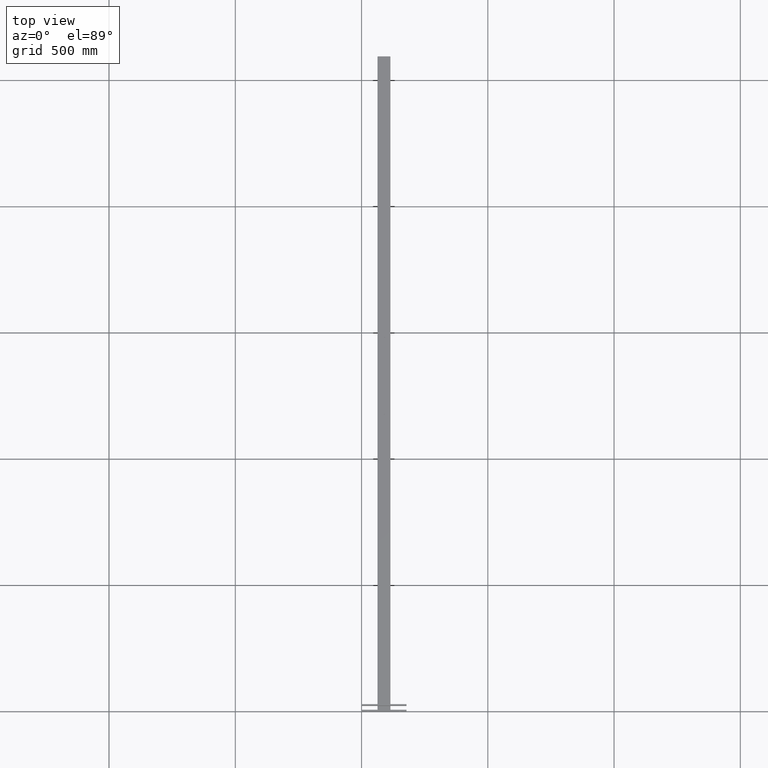
[diagram: clean part render]
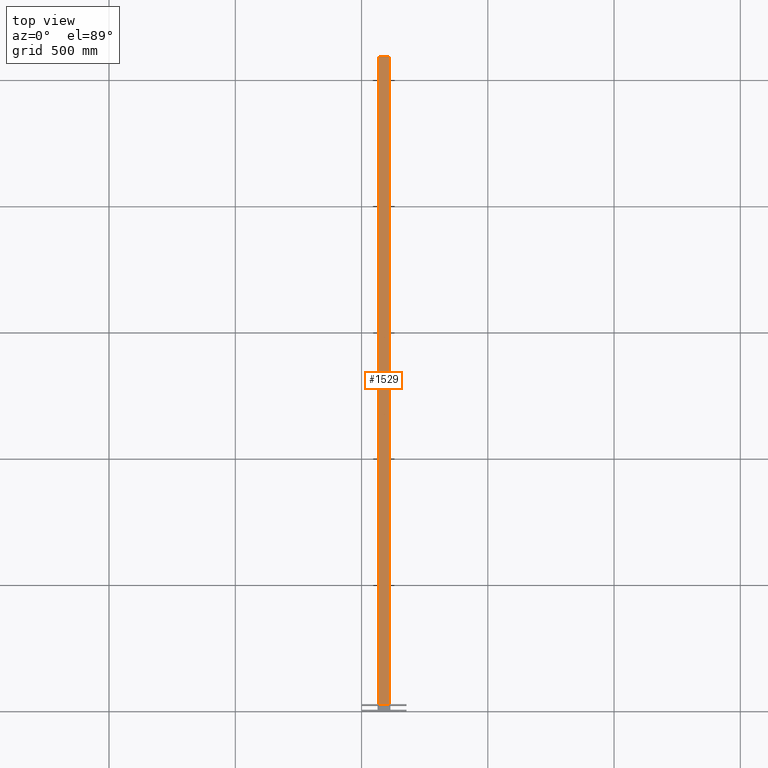
[diagram: same view with one face highlighted and labeled with its STEP entity id]
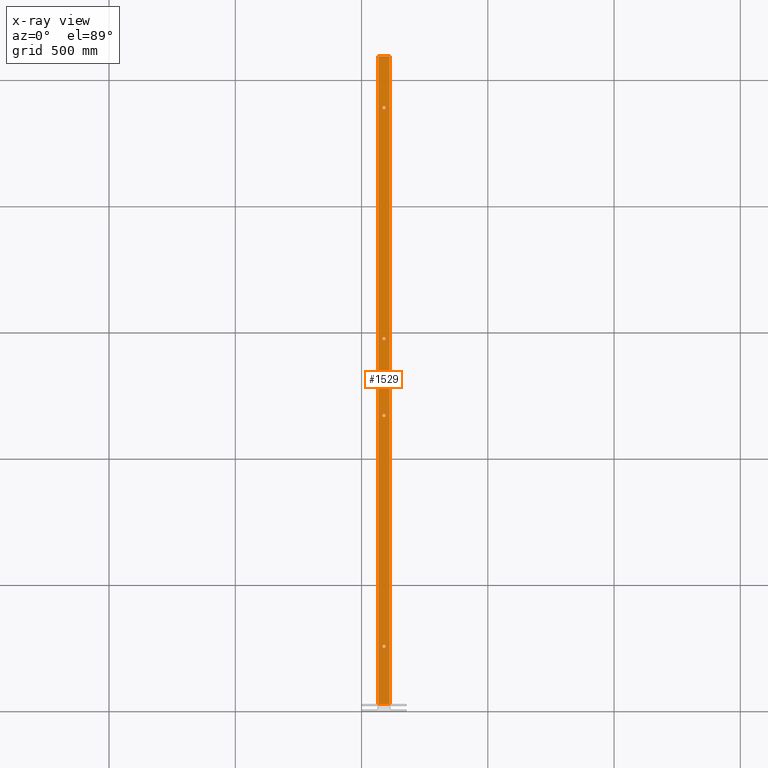
[diagram: x-ray of the same camera — body ghosted, the highlighted face saturated]
A machine part, top view. The second image highlights one B-rep face of the part: STEP entity #1529.
The next image is the same camera in x-ray: the body ghosted, the highlighted face saturated — about 0% of this face is hidden behind the body in this view.
In plain terms, the highlighted planar face has unit normal (0, 0, 1).
Its self-contained STEP definition (entity closure, byte-faithful):
#479=CARTESIAN_POINT('',(0.250000000000004,-0.999999999999972,93.0));
#480=VERTEX_POINT('',#479);
#481=CARTESIAN_POINT('',(0.0,-0.999999999999972,93.0));
#482=DIRECTION('',(0.0,1.0,0.0));
#483=DIRECTION('',(-1.0,0.0,0.0));
#484=AXIS2_PLACEMENT_3D('',#481,#482,#483);
#485=CIRCLE('',#484,0.250000000000004);
#486=EDGE_CURVE('',#480,#480,#485,.T.);
#535=CARTESIAN_POINT('',(0.250000000000002,-0.999999999999972,57.000000000000007));
#536=VERTEX_POINT('',#535);
#537=CARTESIAN_POINT('',(0.0,-0.999999999999972,57.000000000000007));
#538=DIRECTION('',(0.0,1.0,0.0));
#539=DIRECTION('',(-1.0,0.0,0.0));
#540=AXIS2_PLACEMENT_3D('',#537,#538,#539);
#541=CIRCLE('',#540,0.250000000000002);
#542=EDGE_CURVE('',#536,#536,#541,.T.);
#591=CARTESIAN_POINT('',(0.250000000000001,-0.999999999999972,45.000000000000007));
#592=VERTEX_POINT('',#591);
#593=CARTESIAN_POINT('',(0.0,-0.999999999999972,45.000000000000007));
#594=DIRECTION('',(0.0,1.0,0.0));
#595=DIRECTION('',(-1.0,0.0,0.0));
#596=AXIS2_PLACEMENT_3D('',#593,#594,#595);
#597=CIRCLE('',#596,0.250000000000001);
#598=EDGE_CURVE('',#592,#592,#597,.T.);
#647=CARTESIAN_POINT('',(0.250000000000000,-0.999999999999972,9.000000000000005));
#648=VERTEX_POINT('',#647);
#649=CARTESIAN_POINT('',(0.0,-0.999999999999972,9.000000000000005));
#650=DIRECTION('',(0.0,1.0,0.0));
#651=DIRECTION('',(-1.0,0.0,0.0));
#652=AXIS2_PLACEMENT_3D('',#649,#650,#651);
#653=CIRCLE('',#652,0.250000000000000);
#654=EDGE_CURVE('',#648,#648,#653,.T.);
#1231=CARTESIAN_POINT('',(-0.875000000000000,-0.999999999999972,100.999999999999990));
#1232=VERTEX_POINT('',#1231);
#1250=CARTESIAN_POINT('',(-0.875000000000000,-0.999999999999972,0.0));
#1251=VERTEX_POINT('',#1250);
#1259=CARTESIAN_POINT('',(-0.875000000000000,-0.999999999999972,0.0));
#1260=DIRECTION('',(0.0,0.0,1.0));
#1261=VECTOR('',#1260,100.999999999999990);
#1262=LINE('',#1259,#1261);
#1263=EDGE_CURVE('',#1251,#1232,#1262,.T.);
#1468=CARTESIAN_POINT('',(0.875000000000000,-0.999999999999972,100.999999999999990));
#1469=VERTEX_POINT('',#1468);
#1477=CARTESIAN_POINT('',(0.875000000000000,-0.999999999999972,0.0));
#1478=VERTEX_POINT('',#1477);
#1479=CARTESIAN_POINT('',(0.875000000000000,-0.999999999999972,0.0));
#1480=DIRECTION('',(0.0,0.0,1.0));
#1481=VECTOR('',#1480,100.999999999999990);
#1482=LINE('',#1479,#1481);
#1483=EDGE_CURVE('',#1478,#1469,#1482,.T.);
#1496=CARTESIAN_POINT('',(0.875000000000000,-0.999999999999972,0.0));
#1497=DIRECTION('',(0.0,-1.0,0.0));
#1498=DIRECTION('',(0.0,0.0,-1.0));
#1499=AXIS2_PLACEMENT_3D('',#1496,#1497,#1498);
#1500=PLANE('',#1499);
#1501=CARTESIAN_POINT('',(0.875000000000000,-0.999999999999972,100.999999999999990));
#1502=DIRECTION('',(-1.0,0.0,0.0));
#1503=VECTOR('',#1502,1.750000000000000);
#1504=LINE('',#1501,#1503);
#1505=EDGE_CURVE('',#1469,#1232,#1504,.T.);
#1506=ORIENTED_EDGE('',*,*,#1505,.T.);
#1507=ORIENTED_EDGE('',*,*,#1263,.F.);
#1508=CARTESIAN_POINT('',(0.875000000000000,-0.999999999999972,0.0));
#1509=DIRECTION('',(-1.0,0.0,0.0));
#1510=VECTOR('',#1509,1.750000000000000);
#1511=LINE('',#1508,#1510);
#1512=EDGE_CURVE('',#1478,#1251,#1511,.T.);
#1513=ORIENTED_EDGE('',*,*,#1512,.F.);
#1514=ORIENTED_EDGE('',*,*,#1483,.T.);
#1515=EDGE_LOOP('',(#1506,#1507,#1513,#1514));
#1516=FACE_OUTER_BOUND('',#1515,.T.);
#1517=ORIENTED_EDGE('',*,*,#486,.T.);
#1518=EDGE_LOOP('',(#1517));
#1519=FACE_BOUND('',#1518,.T.);
#1520=ORIENTED_EDGE('',*,*,#542,.T.);
#1521=EDGE_LOOP('',(#1520));
#1522=FACE_BOUND('',#1521,.T.);
#1523=ORIENTED_EDGE('',*,*,#598,.T.);
#1524=EDGE_LOOP('',(#1523));
#1525=FACE_BOUND('',#1524,.T.);
#1526=ORIENTED_EDGE('',*,*,#654,.T.);
#1527=EDGE_LOOP('',(#1526));
#1528=FACE_BOUND('',#1527,.T.);
#1529=ADVANCED_FACE('',(#1516,#1519,#1522,#1525,#1528),#1500,.T.);